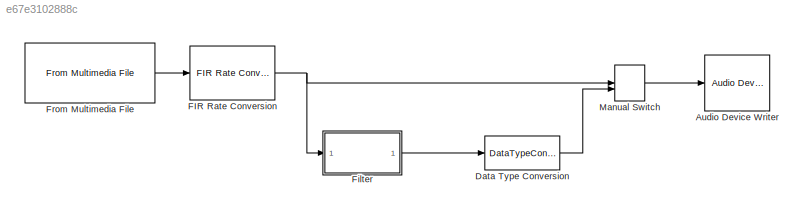
MODEL slx_e67e3102888c
KIND model
CONFIG AbsTol = auto
CONFIG EnableMultiTasking = off
CONFIG FixedStep = auto
CONFIG MaxStep = auto
CONFIG MinStep = auto
CONFIG RelTol = 1e-3
CONFIG SampleTimeConstraint = Unconstrained
CONFIG SolverName = VariableStepAuto
CONFIG StartTime = 0.0
CONFIG StopTime = 10.0
BLOCK [Reference] Audio Device Writer  REF=dspsnks4/Audio Device
Writer
  Ports = [1]
  SourceBlock = dspsnks4/Audio Device\nWriter
  SourceProductName = DSP System Toolbox
  SourceType = Audio Device Writer
BLOCK [DataTypeConversion] Data Type Conversion
  RndMeth = Floor
  SaturateOnIntegerOverflow = off
BLOCK [Reference] FIR Rate Conversion  REF=dspmlti4/FIR Rate
Conversion
  Ports = [1, 1]
  SourceBlock = dspmlti4/FIR Rate\nConversion
  SourceProductBaseCode = DS
  SourceType = FIR Rate Conversion
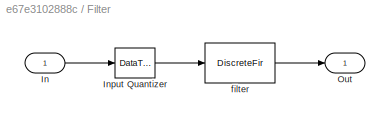
BLOCK [SubSystem] Filter
  Ports = [1, 1]
  RequestExecContextInheritance = off
  Tag = BlockMethodSubSystem
BLOCK [Inport] Filter/In
BLOCK [DataTypeConversion] Filter/Input Quantizer
  OutDataTypeStr = fixdt(1,24,23)
  RndMeth = Round
BLOCK [Outport] Filter/Out
BLOCK [DiscreteFir] Filter/filter
  AccumDataTypeStr = fixdt(true,34,31)
  CoefDataTypeStr = fixdt(true,16,16)
  Coefficients = [-0.00199770033737375332 -0.0050522246581640208 -0.00833204912297771071 -0.0105388507214209063 -0.00928605369156703178 -0.00465626636433711001 0.00212771748052050305 0.00721999616778091439 0.00780919715731914505 0.00275559566900015823 -0.00484572504694240781 -0.0102132088672959379 -0.00881394373220143607 -0.000690352173205861092 0.00960397765611908927 0.0146313292123977159 0.00973684132692750892 -...<+1067ch>
  InputPortMap = u0
  InputProcessing = Columns as channels (frame based)
  OutDataTypeStr = fixdt(true,32,30)
  OutputPortMap = o0
  Ports = [1, 1]
  ProductDataTypeStr = fixdt(true,31,31)
  RndMeth = Convergent
BLOCK [Reference] From Multimedia File  REF=dspvision/From Multimedia File
  Ports = [0, 1]
  SourceBlock = dspvision/From Multimedia File
  SourceProductBaseCode = DS,HW,VP
  SourceType = From Multimedia File
BLOCK [ManualSwitch] Manual Switch
  CurrentSetting = 0
LINE Data Type Conversion:1 -> Manual Switch:2
NET FIR Rate Conversion:1 -> Filter:1, Manual Switch:1
LINE Filter/In:1 -> Filter/Input Quantizer:1
LINE Filter/Input Quantizer:1 -> Filter/filter:1
LINE Filter/filter:1 -> Filter/Out:1
LINE Filter:1 -> Data Type Conversion:1
LINE From Multimedia File:1 -> FIR Rate Conversion:1
LINE Manual Switch:1 -> Audio Device Writer:1
note: NET lines group one-source signal fan-out (src -> all destinations, sorted); 1:1 wires keep LINE
